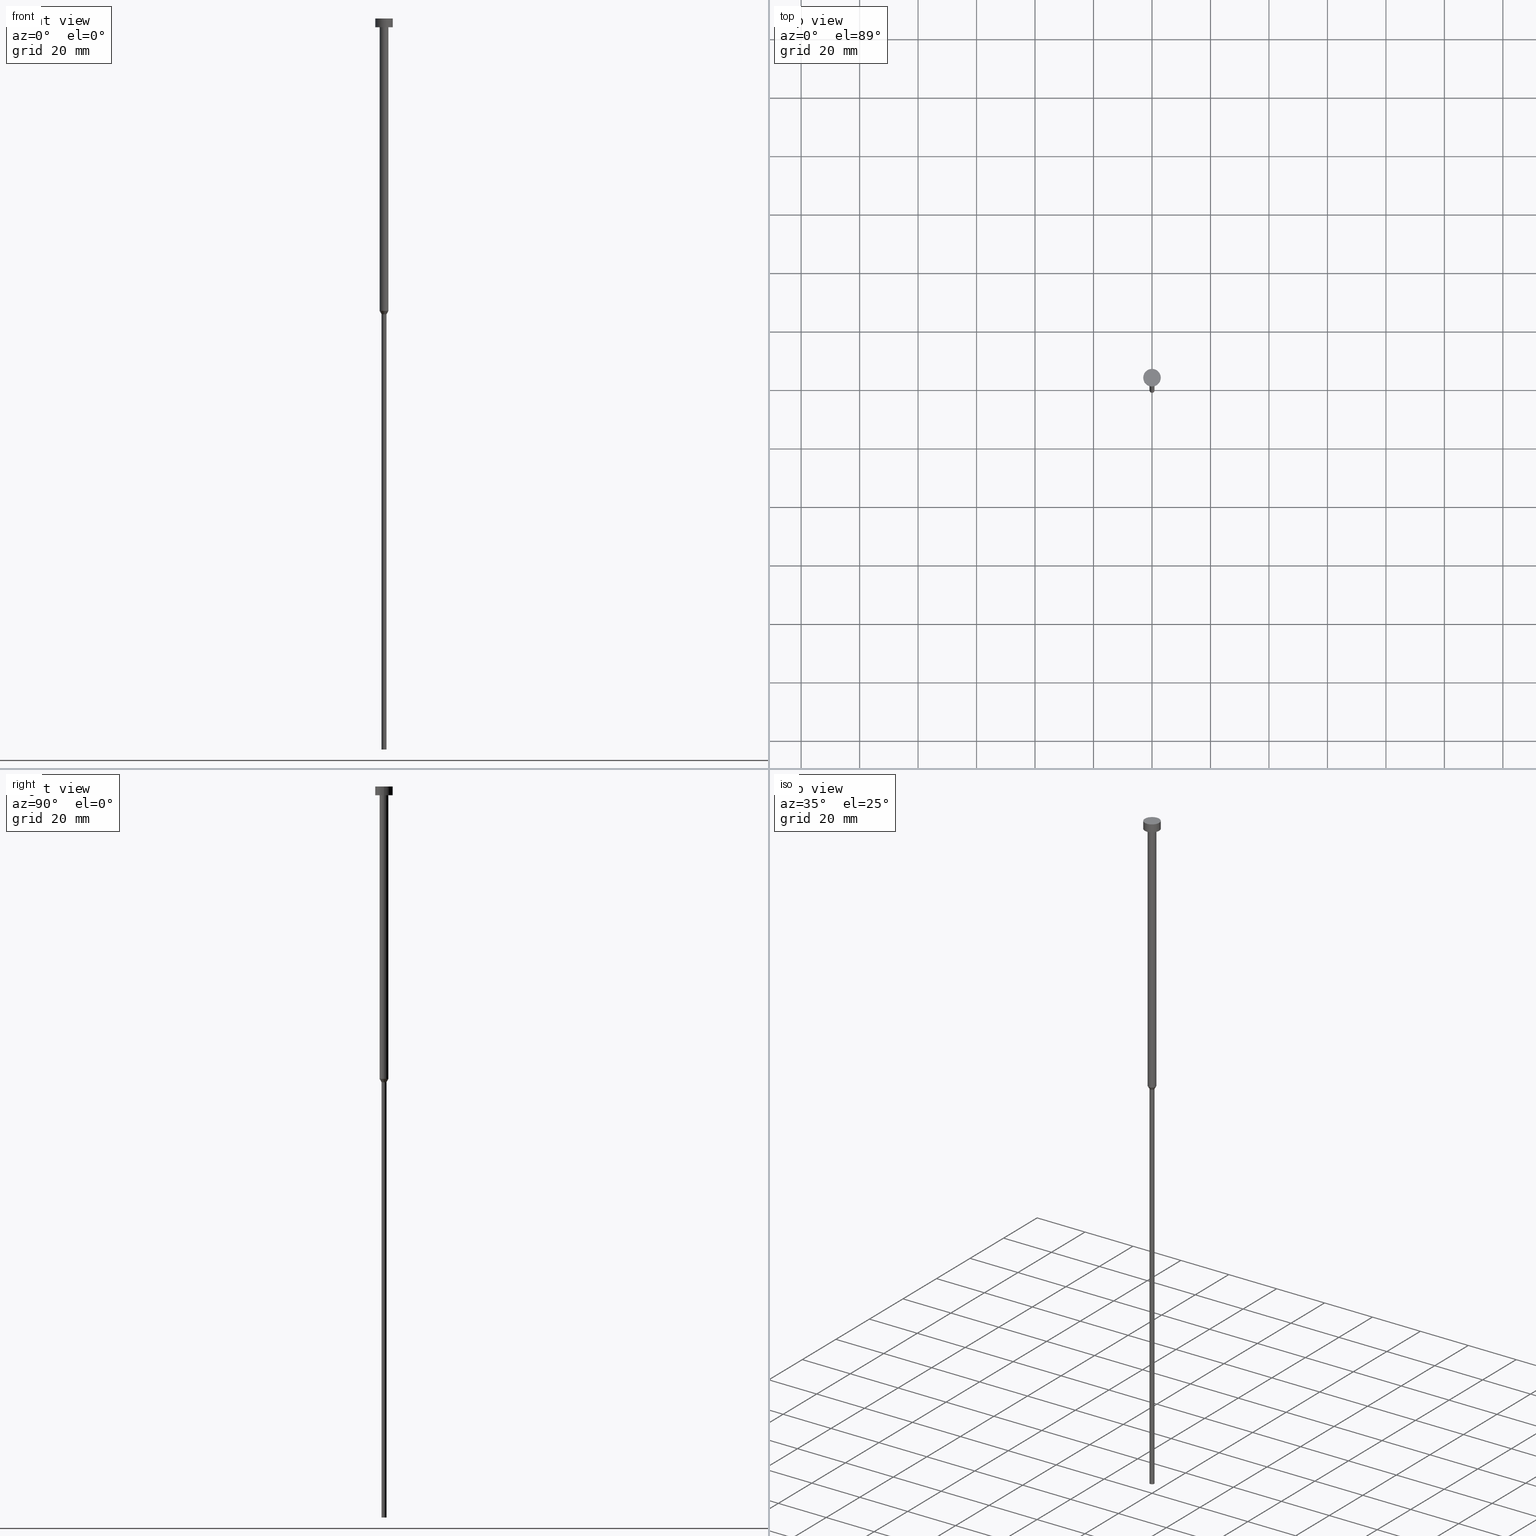
[diagram: canonical four-view strip — front | top / right | iso, engineering-drawing reading convention]
A machine part, canonical four-view strip (front | top / right | iso — engineering-drawing reading convention). The complete STEP part file that produces these views, byte-faithful:
ISO-10303-21;
HEADER;
FILE_DESCRIPTION (( 'STEP AP203' ),
    '1' );
FILE_NAME ('4092.STEP',
    '2023-02-13T09:01:50',
    ( '' ),
    ( '' ),
    'SwSTEP 2.0',
    'SolidWorks 2019',
    '' );
FILE_SCHEMA (( 'CONFIG_CONTROL_DESIGN' ));
ENDSEC;

DATA;
#1 = DIRECTION ( 'NONE',  ( -0.000000000000000000, -0.000000000000000000, 1.000000000000000000 ) ) ;
#2 = LINE ( 'NONE', #190, #108 ) ;
#3 = CYLINDRICAL_SURFACE ( 'NONE', #36, 3.000000000000000000 ) ;
#4 = VECTOR ( 'NONE', #131, 1000.000000000000000 ) ;
#5 = EDGE_CURVE ( 'NONE', #263, #226, #67, .T. ) ;
#6 = CARTESIAN_POINT ( 'NONE',  ( 0.000000000000000000, 0.000000000000000000, 0.000000000000000000 ) ) ;
#7 = PRODUCT_DEFINITION ( 'NEZN�M�', '', #340, #212 ) ;
#8 = VERTEX_POINT ( 'NONE', #103 ) ;
#9 = ORIENTED_EDGE ( 'NONE', *, *, #22, .T. ) ;
#10 = EDGE_LOOP ( 'NONE', ( #62, #336, #198, #308 ) ) ;
#11 = ADVANCED_FACE ( 'NONE', ( #282 ), #148, .T. ) ;
#12 = ORIENTED_EDGE ( 'NONE', *, *, #39, .F. ) ;
#13 = CIRCLE ( 'NONE', #216, 0.8499999999999998668 ) ;
#14 = LOCAL_TIME ( 10, 1, 50.00000000000000000, #159 ) ;
#15 = PERSON_AND_ORGANIZATION_ROLE ( 'design_owner' ) ;
#16 = ORIENTED_EDGE ( 'NONE', *, *, #111, .F. ) ;
#17 = DIRECTION ( 'NONE',  ( -0.000000000000000000, -0.000000000000000000, 1.000000000000000000 ) ) ;
#18 = AXIS2_PLACEMENT_3D ( 'NONE', #105, #321, #162 ) ;
#19 = EDGE_CURVE ( 'NONE', #233, #101, #293, .T. ) ;
#20 = CARTESIAN_POINT ( 'NONE',  ( -1.500000000000000000, 1.836970198721029934E-16, -100.0000000000000000 ) ) ;
#21 = CARTESIAN_POINT ( 'NONE',  ( 0.000000000000000000, 0.000000000000000000, -100.0000000000000000 ) ) ;
#22 = EDGE_CURVE ( 'NONE', #66, #177, #323, .T. ) ;
#23 = APPLICATION_CONTEXT ( 'configuration controlled 3d designs of mechanical parts and assemblies' ) ;
#24 = PRODUCT ( '4092', '4092', '', ( #260 ) ) ;
#25 = PERSON_AND_ORGANIZATION ( #88, #144 ) ;
#26 = DIRECTION ( 'NONE',  ( 0.000000000000000000, 0.000000000000000000, -1.000000000000000000 ) ) ;
#27 = VECTOR ( 'NONE', #267, 1000.000000000000114 ) ;
#28 = SECURITY_CLASSIFICATION_LEVEL ( 'unclassified' ) ;
#29 = CARTESIAN_POINT ( 'NONE',  ( 0.8499999999999998668, 0.000000000000000000, -101.1258330249197570 ) ) ;
#30 = CONICAL_SURFACE ( 'NONE', #316, 1.500000000000000000, 0.5235987755983053660 ) ;
#31 = CALENDAR_DATE ( 2023, 13, 2 ) ;
#32 = DATE_AND_TIME ( #163, #304 ) ;
#33 = DIRECTION ( 'NONE',  ( 0.000000000000000000, -0.000000000000000000, 1.000000000000000000 ) ) ;
#34 = EDGE_CURVE ( 'NONE', #263, #149, #244, .T. ) ;
#35 = COORDINATED_UNIVERSAL_TIME_OFFSET ( 1, 0, .AHEAD. ) ;
#36 = AXIS2_PLACEMENT_3D ( 'NONE', #326, #1, #114 ) ;
#37 = DIRECTION ( 'NONE',  ( 1.000000000000000000, 0.000000000000000000, 0.000000000000000000 ) ) ;
#38 = CARTESIAN_POINT ( 'NONE',  ( 0.000000000000000000, 0.000000000000000000, -101.1258330249197570 ) ) ;
#39 = EDGE_CURVE ( 'NONE', #226, #263, #122, .T. ) ;
#40 = CARTESIAN_POINT ( 'NONE',  ( 0.000000000000000000, 0.000000000000000000, -3.000000000000000888 ) ) ;
#41 = FACE_OUTER_BOUND ( 'NONE', #232, .T. ) ;
#42 = EDGE_LOOP ( 'NONE', ( #171, #259, #256, #195 ) ) ;
#43 = AXIS2_PLACEMENT_3D ( 'NONE', #140, #333, #224 ) ;
#44 = DIRECTION ( 'NONE',  ( 1.000000000000000000, 0.000000000000000000, 0.000000000000000000 ) ) ;
#45 = APPLICATION_PROTOCOL_DEFINITION ( 'international standard', 'config_control_design', 1994, #143 ) ;
#46 = EDGE_CURVE ( 'NONE', #102, #205, #318, .T. ) ;
#47 = DIRECTION ( 'NONE',  ( -0.000000000000000000, -0.000000000000000000, 1.000000000000000000 ) ) ;
#48 = AXIS2_PLACEMENT_3D ( 'NONE', #154, #257, #200 ) ;
#49 = DIRECTION ( 'NONE',  ( 1.000000000000000000, 0.000000000000000000, 0.000000000000000000 ) ) ;
#50 = AXIS2_PLACEMENT_3D ( 'NONE', #137, #168, #247 ) ;
#51 = AXIS2_PLACEMENT_3D ( 'NONE', #6, #228, #307 ) ;
#52 = COORDINATED_UNIVERSAL_TIME_OFFSET ( 1, 0, .AHEAD. ) ;
#53 = CYLINDRICAL_SURFACE ( 'NONE', #339, 1.500000000000000000 ) ;
#54 = APPROVAL_ROLE ( '' ) ;
#55 = PERSON_AND_ORGANIZATION_ROLE ( 'design_supplier' ) ;
#56 = DIRECTION ( 'NONE',  ( -0.000000000000000000, -0.000000000000000000, 1.000000000000000000 ) ) ;
#57 = CIRCLE ( 'NONE', #295, 3.000000000000000000 ) ;
#58 = COORDINATED_UNIVERSAL_TIME_OFFSET ( 1, 0, .AHEAD. ) ;
#59 = CYLINDRICAL_SURFACE ( 'NONE', #73, 1.500000000000000000 ) ;
#60 = CC_DESIGN_APPROVAL ( #281, ( #7 ) ) ;
#61 = CARTESIAN_POINT ( 'NONE',  ( 0.000000000000000000, 0.000000000000000000, -1.836970198721029934E-16 ) ) ;
#62 = ORIENTED_EDGE ( 'NONE', *, *, #22, .F. ) ;
#63 = ADVANCED_FACE ( 'NONE', ( #270 ), #269, .T. ) ;
#64 = APPROVAL_ROLE ( '' ) ;
#65 = DIRECTION ( 'NONE',  ( -0.000000000000000000, -0.000000000000000000, 1.000000000000000000 ) ) ;
#66 = VERTEX_POINT ( 'NONE', #155 ) ;
#67 = CIRCLE ( 'NONE', #330, 3.000000000000000000 ) ;
#68 = DIRECTION ( 'NONE',  ( 1.000000000000000000, 0.000000000000000000, 0.000000000000000000 ) ) ;
#69 = PRODUCT_RELATED_PRODUCT_CATEGORY ( 'detail', '', ( #24 ) ) ;
#70 =( NAMED_UNIT ( * ) PLANE_ANGLE_UNIT ( ) SI_UNIT ( $, .RADIAN. ) );
#71 = ORIENTED_EDGE ( 'NONE', *, *, #302, .F. ) ;
#72 = EDGE_CURVE ( 'NONE', #101, #233, #141, .T. ) ;
#73 = AXIS2_PLACEMENT_3D ( 'NONE', #123, #17, #345 ) ;
#74 = ORIENTED_EDGE ( 'NONE', *, *, #84, .T. ) ;
#75 = EDGE_LOOP ( 'NONE', ( #283, #9, #335, #337 ) ) ;
#76 = ORIENTED_EDGE ( 'NONE', *, *, #5, .F. ) ;
#77 = CARTESIAN_POINT ( 'NONE',  ( -0.8499999999999998668, 1.040949779275250017E-16, 0.000000000000000000 ) ) ;
#78 = ADVANCED_FACE ( 'NONE', ( #265 ), #183, .T. ) ;
#79 = DATE_TIME_ROLE ( 'creation_date' ) ;
#80 = DIRECTION ( 'NONE',  ( -0.000000000000000000, -0.000000000000000000, 1.000000000000000000 ) ) ;
#81 = DIRECTION ( 'NONE',  ( -1.000000000000000000, 0.000000000000000000, -0.000000000000000000 ) ) ;
#82 = CARTESIAN_POINT ( 'NONE',  ( -1.500000000000000000, 1.836970198721029934E-16, -100.0000000000000000 ) ) ;
#83 = CLOSED_SHELL ( 'NONE', ( #258, #199, #138, #11, #78, #63, #127, #211, #348, #255, #341 ) ) ;
#84 = EDGE_CURVE ( 'NONE', #205, #233, #187, .T. ) ;
#85 = PERSON_AND_ORGANIZATION ( #88, #144 ) ;
#86 = DIRECTION ( 'NONE',  ( -0.000000000000000000, -0.000000000000000000, 1.000000000000000000 ) ) ;
#87 = CONICAL_SURFACE ( 'NONE', #279, 1.500000000000000000, 0.5235987755983053660 ) ;
#88 = PERSON ( 'NEUR�EN�', 'NEUR�EN�', 'NEUR�EN�', ('NEUR�EN�'), ('NEUR�EN�'), ('NEUR�EN�') ) ;
#89 = APPROVAL_STATUS ( 'not_yet_approved' ) ;
#90 = CARTESIAN_POINT ( 'NONE',  ( 3.000000000000000000, 0.000000000000000000, -3.000000000000000888 ) ) ;
#91 = ORIENTED_EDGE ( 'NONE', *, *, #19, .T. ) ;
#92 = DIRECTION ( 'NONE',  ( -0.000000000000000000, -0.000000000000000000, 1.000000000000000000 ) ) ;
#93 = AXIS2_PLACEMENT_3D ( 'NONE', #317, #26, #81 ) ;
#94 = EDGE_LOOP ( 'NONE', ( #153, #261, #119, #142 ) ) ;
#95 = CIRCLE ( 'NONE', #285, 1.500000000000000000 ) ;
#96 = LOCAL_TIME ( 10, 1, 50.00000000000000000, #58 ) ;
#97 = CARTESIAN_POINT ( 'NONE',  ( 0.8499999999999998668, 0.000000000000000000, 0.000000000000000000 ) ) ;
#98 = DIRECTION ( 'NONE',  ( 1.000000000000000000, 0.000000000000000000, 0.000000000000000000 ) ) ;
#99 = ORIENTED_EDGE ( 'NONE', *, *, #272, .F. ) ;
#100 = SECURITY_CLASSIFICATION ( '', '', #28 ) ;
#101 = VERTEX_POINT ( 'NONE', #218 ) ;
#102 = VERTEX_POINT ( 'NONE', #29 ) ;
#103 = CARTESIAN_POINT ( 'NONE',  ( -3.000000000000000000, 3.673940397442059868E-16, -3.673940397442059868E-16 ) ) ;
#104 = DIRECTION ( 'NONE',  ( -0.000000000000000000, -0.000000000000000000, 1.000000000000000000 ) ) ;
#105 = CARTESIAN_POINT ( 'NONE',  ( 0.000000000000000000, 0.000000000000000000, -3.000000000000000888 ) ) ;
#106 = CARTESIAN_POINT ( 'NONE',  ( 1.500000000000000000, 0.000000000000000000, -100.0000000000000000 ) ) ;
#107 = PERSON_AND_ORGANIZATION_ROLE ( 'creator' ) ;
#108 = VECTOR ( 'NONE', #274, 1000.000000000000000 ) ;
#109 = DIRECTION ( 'NONE',  ( 1.000000000000000000, 0.000000000000000000, 0.000000000000000000 ) ) ;
#110 = CALENDAR_DATE ( 2023, 13, 2 ) ;
#111 = EDGE_CURVE ( 'NONE', #177, #191, #288, .T. ) ;
#112 = CYLINDRICAL_SURFACE ( 'NONE', #196, 3.000000000000000000 ) ;
#113 = CC_DESIGN_APPROVAL ( #203, ( #340 ) ) ;
#114 = DIRECTION ( 'NONE',  ( 1.000000000000000000, 0.000000000000000000, 0.000000000000000000 ) ) ;
#115 = EDGE_CURVE ( 'NONE', #8, #149, #57, .T. ) ;
#116 = EDGE_LOOP ( 'NONE', ( #229, #231 ) ) ;
#117 = FACE_OUTER_BOUND ( 'NONE', #120, .T. ) ;
#118 = ORIENTED_EDGE ( 'NONE', *, *, #72, .T. ) ;
#119 = ORIENTED_EDGE ( 'NONE', *, *, #19, .F. ) ;
#120 = EDGE_LOOP ( 'NONE', ( #222, #344, #147, #313 ) ) ;
#121 = EDGE_LOOP ( 'NONE', ( #343, #176, #74, #277 ) ) ;
#122 = CIRCLE ( 'NONE', #246, 3.000000000000000000 ) ;
#123 = CARTESIAN_POINT ( 'NONE',  ( 0.000000000000000000, 0.000000000000000000, 0.000000000000000000 ) ) ;
#124 = PERSON_AND_ORGANIZATION ( #88, #144 ) ;
#125 = CIRCLE ( 'NONE', #327, 0.8499999999999998668 ) ;
#126 = CARTESIAN_POINT ( 'NONE',  ( 0.000000000000000000, 0.000000000000000000, -3.000000000000000888 ) ) ;
#127 = ADVANCED_FACE ( 'NONE', ( #290 ), #30, .T. ) ;
#128 = CARTESIAN_POINT ( 'NONE',  ( 3.000000000000000000, 0.000000000000000000, -3.673940397442059868E-16 ) ) ;
#129 = CARTESIAN_POINT ( 'NONE',  ( 0.000000000000000000, 0.000000000000000000, -3.673940397442059868E-16 ) ) ;
#130 = COORDINATED_UNIVERSAL_TIME_OFFSET ( 1, 0, .AHEAD. ) ;
#131 = DIRECTION ( 'NONE',  ( -0.000000000000000000, -0.000000000000000000, 1.000000000000000000 ) ) ;
#132 = AXIS2_PLACEMENT_3D ( 'NONE', #61, #33, #310 ) ;
#133 = CALENDAR_DATE ( 2023, 13, 2 ) ;
#134 = CC_DESIGN_PERSON_AND_ORGANIZATION_ASSIGNMENT ( #311, #15, ( #24 ) ) ;
#135 = CARTESIAN_POINT ( 'NONE',  ( 1.500000000000000000, 0.000000000000000000, -3.000000000000000888 ) ) ;
#136 = DATE_TIME_ROLE ( 'classification_date' ) ;
#137 = CARTESIAN_POINT ( 'NONE',  ( 0.000000000000000000, 0.000000000000000000, -250.0000000000000000 ) ) ;
#138 = ADVANCED_FACE ( 'NONE', ( #292 ), #87, .T. ) ;
#139 = CIRCLE ( 'NONE', #169, 0.8499999999999998668 ) ;
#140 = CARTESIAN_POINT ( 'NONE',  ( 0.000000000000000000, 0.000000000000000000, -100.0000000000000000 ) ) ;
#141 = CIRCLE ( 'NONE', #18, 1.500000000000000000 ) ;
#142 = ORIENTED_EDGE ( 'NONE', *, *, #84, .F. ) ;
#143 = APPLICATION_CONTEXT ( 'configuration controlled 3d designs of mechanical parts and assemblies' ) ;
#144 = ORGANIZATION ( 'NEUR�EN�', 'NEUR�EN�', '' ) ;
#145 = FACE_BOUND ( 'NONE', #286, .T. ) ;
#146 = EDGE_CURVE ( 'NONE', #177, #102, #125, .T. ) ;
#147 = ORIENTED_EDGE ( 'NONE', *, *, #34, .T. ) ;
#148 = CYLINDRICAL_SURFACE ( 'NONE', #48, 0.8499999999999998668 ) ;
#149 = VERTEX_POINT ( 'NONE', #128 ) ;
#150 = CC_DESIGN_DATE_AND_TIME_ASSIGNMENT ( #320, #79, ( #7 ) ) ;
#151 = AXIS2_PLACEMENT_3D ( 'NONE', #193, #301, #68 ) ;
#152 = LOCAL_TIME ( 10, 1, 50.00000000000000000, #35 ) ;
#153 = ORIENTED_EDGE ( 'NONE', *, *, #325, .T. ) ;
#154 = CARTESIAN_POINT ( 'NONE',  ( 0.000000000000000000, 0.000000000000000000, 0.000000000000000000 ) ) ;
#155 = CARTESIAN_POINT ( 'NONE',  ( -0.8499999999999998668, 1.040949779275250017E-16, -250.0000000000000000 ) ) ;
#156 = CARTESIAN_POINT ( 'NONE',  ( 0.000000000000000000, 0.000000000000000000, -101.1258330249197570 ) ) ;
#157 = APPROVAL_PERSON_ORGANIZATION ( #184, #203, #289 ) ;
#158 = CARTESIAN_POINT ( 'NONE',  ( 3.000000000000000000, 0.000000000000000000, 0.000000000000000000 ) ) ;
#159 = COORDINATED_UNIVERSAL_TIME_OFFSET ( 1, 0, .AHEAD. ) ;
#160 = AXIS2_PLACEMENT_3D ( 'NONE', #40, #208, #44 ) ;
#161 = DIRECTION ( 'NONE',  ( 1.000000000000000000, 0.000000000000000000, 0.000000000000000000 ) ) ;
#162 = DIRECTION ( 'NONE',  ( 1.000000000000000000, 0.000000000000000000, 0.000000000000000000 ) ) ;
#163 = CALENDAR_DATE ( 2023, 13, 2 ) ;
#164 = CARTESIAN_POINT ( 'NONE',  ( 0.000000000000000000, 0.000000000000000000, 0.000000000000000000 ) ) ;
#165 = DATE_AND_TIME ( #133, #14 ) ;
#166 = LINE ( 'NONE', #248, #249 ) ;
#167 = APPROVAL_DATE_TIME ( #280, #240 ) ;
#168 = DIRECTION ( 'NONE',  ( -0.000000000000000000, -0.000000000000000000, 1.000000000000000000 ) ) ;
#169 = AXIS2_PLACEMENT_3D ( 'NONE', #38, #170, #329 ) ;
#170 = DIRECTION ( 'NONE',  ( -0.000000000000000000, -0.000000000000000000, 1.000000000000000000 ) ) ;
#171 = ORIENTED_EDGE ( 'NONE', *, *, #262, .T. ) ;
#172 = EDGE_LOOP ( 'NONE', ( #16, #315, #314, #179 ) ) ;
#173 = APPLICATION_PROTOCOL_DEFINITION ( 'international standard', 'config_control_design', 1994, #23 ) ;
#174 = ADVANCED_BREP_SHAPE_REPRESENTATION ( '4092', ( #238, #51 ), #227 ) ;
#175 = ORIENTED_EDGE ( 'NONE', *, *, #250, .T. ) ;
#176 = ORIENTED_EDGE ( 'NONE', *, *, #312, .T. ) ;
#177 = VERTEX_POINT ( 'NONE', #239 ) ;
#178 = VECTOR ( 'NONE', #182, 1000.000000000000000 ) ;
#179 = ORIENTED_EDGE ( 'NONE', *, *, #312, .F. ) ;
#180 = PRODUCT_DEFINITION_SHAPE ( 'NONE', 'NONE',  #7 ) ;
#181 = EDGE_LOOP ( 'NONE', ( #201, #175, #71, #284 ) ) ;
#182 = DIRECTION ( 'NONE',  ( -0.000000000000000000, -0.000000000000000000, 1.000000000000000000 ) ) ;
#183 = PLANE ( 'NONE',  #93 ) ;
#184 = PERSON_AND_ORGANIZATION ( #88, #144 ) ;
#185 = CARTESIAN_POINT ( 'NONE',  ( 0.000000000000000000, 0.000000000000000000, -100.0000000000000000 ) ) ;
#186 = CC_DESIGN_SECURITY_CLASSIFICATION ( #100, ( #340 ) ) ;
#187 = LINE ( 'NONE', #242, #178 ) ;
#188 = CARTESIAN_POINT ( 'NONE',  ( 1.500000000000000000, 0.000000000000000000, -100.0000000000000000 ) ) ;
#189 = PERSON_AND_ORGANIZATION_ROLE ( 'classification_officer' ) ;
#190 = CARTESIAN_POINT ( 'NONE',  ( -1.500000000000000000, 1.836970198721029934E-16, 0.000000000000000000 ) ) ;
#191 = VERTEX_POINT ( 'NONE', #20 ) ;
#192 = CC_DESIGN_PERSON_AND_ORGANIZATION_ASSIGNMENT ( #220, #107, ( #340 ) ) ;
#193 = CARTESIAN_POINT ( 'NONE',  ( 0.000000000000000000, 0.000000000000000000, -3.673940397442059868E-16 ) ) ;
#194 = CARTESIAN_POINT ( 'NONE',  ( 0.000000000000000000, 0.000000000000000000, -100.0000000000000000 ) ) ;
#195 = ORIENTED_EDGE ( 'NONE', *, *, #46, .F. ) ;
#196 = AXIS2_PLACEMENT_3D ( 'NONE', #164, #65, #37 ) ;
#197 = DIRECTION ( 'NONE',  ( 1.000000000000000000, 0.000000000000000000, 0.000000000000000000 ) ) ;
#198 = ORIENTED_EDGE ( 'NONE', *, *, #319, .T. ) ;
#199 = ADVANCED_FACE ( 'NONE', ( #349 ), #53, .T. ) ;
#200 = DIRECTION ( 'NONE',  ( 1.000000000000000000, 0.000000000000000000, 0.000000000000000000 ) ) ;
#201 = ORIENTED_EDGE ( 'NONE', *, *, #5, .T. ) ;
#202 = CIRCLE ( 'NONE', #50, 0.8499999999999998668 ) ;
#203 = APPROVAL ( #89, 'NEUR�EN�' ) ;
#204 =( NAMED_UNIT ( * ) SI_UNIT ( $, .STERADIAN. ) SOLID_ANGLE_UNIT ( ) );
#205 = VERTEX_POINT ( 'NONE', #188 ) ;
#206 = AXIS2_PLACEMENT_3D ( 'NONE', #214, #352, #161 ) ;
#207 = PLANE ( 'NONE',  #266 ) ;
#208 = DIRECTION ( 'NONE',  ( -0.000000000000000000, -0.000000000000000000, 1.000000000000000000 ) ) ;
#209 = LOCAL_TIME ( 10, 1, 50.00000000000000000, #52 ) ;
#210 = DIRECTION ( 'NONE',  ( 1.000000000000000000, 0.000000000000000000, 0.000000000000000000 ) ) ;
#211 = ADVANCED_FACE ( 'NONE', ( #294 ), #59, .T. ) ;
#212 = DESIGN_CONTEXT ( 'detailed design', #143, 'design' ) ;
#213 = DIRECTION ( 'NONE',  ( 1.000000000000000000, 0.000000000000000000, 0.000000000000000000 ) ) ;
#214 = CARTESIAN_POINT ( 'NONE',  ( 0.000000000000000000, 0.000000000000000000, 0.000000000000000000 ) ) ;
#215 = CC_DESIGN_PERSON_AND_ORGANIZATION_ASSIGNMENT ( #25, #217, ( #7 ) ) ;
#216 = AXIS2_PLACEMENT_3D ( 'NONE', #299, #86, #252 ) ;
#217 = PERSON_AND_ORGANIZATION_ROLE ( 'creator' ) ;
#218 = CARTESIAN_POINT ( 'NONE',  ( -1.500000000000000000, 1.836970198721029934E-16, -3.000000000000000888 ) ) ;
#219 = DIRECTION ( 'NONE',  ( -0.000000000000000000, -0.000000000000000000, 1.000000000000000000 ) ) ;
#220 = PERSON_AND_ORGANIZATION ( #88, #144 ) ;
#221 = FACE_OUTER_BOUND ( 'NONE', #181, .T. ) ;
#222 = ORIENTED_EDGE ( 'NONE', *, *, #250, .F. ) ;
#223 = EDGE_CURVE ( 'NONE', #66, #338, #202, .T. ) ;
#224 = DIRECTION ( 'NONE',  ( 1.000000000000000000, 0.000000000000000000, 0.000000000000000000 ) ) ;
#225 = CC_DESIGN_PERSON_AND_ORGANIZATION_ASSIGNMENT ( #328, #189, ( #100 ) ) ;
#226 = VERTEX_POINT ( 'NONE', #275 ) ;
#227 =( GEOMETRIC_REPRESENTATION_CONTEXT ( 3 ) GLOBAL_UNCERTAINTY_ASSIGNED_CONTEXT ( ( #264 ) ) GLOBAL_UNIT_ASSIGNED_CONTEXT ( ( #234, #70, #204 ) ) REPRESENTATION_CONTEXT ( 'NONE', 'WORKASPACE' ) );
#228 = DIRECTION ( 'NONE',  ( 0.000000000000000000, 0.000000000000000000, 1.000000000000000000 ) ) ;
#229 = ORIENTED_EDGE ( 'NONE', *, *, #302, .T. ) ;
#230 = DIRECTION ( 'NONE',  ( -1.000000000000000000, 0.000000000000000000, -0.000000000000000000 ) ) ;
#231 = ORIENTED_EDGE ( 'NONE', *, *, #115, .T. ) ;
#232 = EDGE_LOOP ( 'NONE', ( #76, #12 ) ) ;
#233 = VERTEX_POINT ( 'NONE', #135 ) ;
#234 =( LENGTH_UNIT ( ) NAMED_UNIT ( * ) SI_UNIT ( .MILLI., .METRE. ) );
#235 = CARTESIAN_POINT ( 'NONE',  ( 0.000000000000000000, 0.000000000000000000, -3.000000000000000888 ) ) ;
#236 = DIRECTION ( 'NONE',  ( -0.000000000000000000, -0.000000000000000000, 1.000000000000000000 ) ) ;
#237 = DIRECTION ( 'NONE',  ( -0.000000000000000000, -0.000000000000000000, 1.000000000000000000 ) ) ;
#238 = MANIFOLD_SOLID_BREP ( 'Rotovat1', #83 ) ;
#239 = CARTESIAN_POINT ( 'NONE',  ( -0.8499999999999998668, 1.040949779275250017E-16, -101.1258330249197570 ) ) ;
#240 = APPROVAL ( #298, 'NEUR�EN�' ) ;
#241 = VECTOR ( 'NONE', #347, 1000.000000000000114 ) ;
#242 = CARTESIAN_POINT ( 'NONE',  ( 1.500000000000000000, 0.000000000000000000, 0.000000000000000000 ) ) ;
#243 = VECTOR ( 'NONE', #273, 1000.000000000000000 ) ;
#244 = LINE ( 'NONE', #158, #4 ) ;
#245 = PERSON_AND_ORGANIZATION ( #88, #144 ) ;
#246 = AXIS2_PLACEMENT_3D ( 'NONE', #126, #237, #213 ) ;
#247 = DIRECTION ( 'NONE',  ( 1.000000000000000000, 0.000000000000000000, 0.000000000000000000 ) ) ;
#248 = CARTESIAN_POINT ( 'NONE',  ( -3.000000000000000000, 3.673940397442059868E-16, 0.000000000000000000 ) ) ;
#249 = VECTOR ( 'NONE', #92, 1000.000000000000000 ) ;
#250 = EDGE_CURVE ( 'NONE', #226, #8, #166, .T. ) ;
#251 = CC_DESIGN_DATE_AND_TIME_ASSIGNMENT ( #32, #136, ( #100 ) ) ;
#252 = DIRECTION ( 'NONE',  ( 1.000000000000000000, 0.000000000000000000, 0.000000000000000000 ) ) ;
#253 = CALENDAR_DATE ( 2023, 13, 2 ) ;
#254 = CARTESIAN_POINT ( 'NONE',  ( 0.000000000000000000, -3.000000000000000000, -3.000000000000000888 ) ) ;
#255 = ADVANCED_FACE ( 'NONE', ( #117 ), #112, .T. ) ;
#256 = ORIENTED_EDGE ( 'NONE', *, *, #325, .F. ) ;
#257 = DIRECTION ( 'NONE',  ( -0.000000000000000000, -0.000000000000000000, 1.000000000000000000 ) ) ;
#258 = ADVANCED_FACE ( 'NONE', ( #221 ), #3, .T. ) ;
#259 = ORIENTED_EDGE ( 'NONE', *, *, #111, .T. ) ;
#260 = MECHANICAL_CONTEXT ( 'NONE', #23, 'mechanical' ) ;
#261 = ORIENTED_EDGE ( 'NONE', *, *, #297, .T. ) ;
#262 = EDGE_CURVE ( 'NONE', #102, #177, #139, .T. ) ;
#263 = VERTEX_POINT ( 'NONE', #90 ) ;
#264 = UNCERTAINTY_MEASURE_WITH_UNIT (LENGTH_MEASURE( 1.000000000000000082E-05 ), #234, 'distance_accuracy_value', 'NONE');
#265 = FACE_OUTER_BOUND ( 'NONE', #300, .T. ) ;
#266 = AXIS2_PLACEMENT_3D ( 'NONE', #254, #342, #230 ) ;
#267 = DIRECTION ( 'NONE',  ( -0.5000000000000056621, 6.123233995736835061E-17, 0.8660254037844352659 ) ) ;
#268 = APPROVAL_STATUS ( 'not_yet_approved' ) ;
#269 = CYLINDRICAL_SURFACE ( 'NONE', #206, 0.8499999999999998668 ) ;
#270 = FACE_OUTER_BOUND ( 'NONE', #10, .T. ) ;
#271 = FACE_OUTER_BOUND ( 'NONE', #116, .T. ) ;
#272 = EDGE_CURVE ( 'NONE', #338, #66, #13, .T. ) ;
#273 = DIRECTION ( 'NONE',  ( -0.000000000000000000, -0.000000000000000000, 1.000000000000000000 ) ) ;
#274 = DIRECTION ( 'NONE',  ( -0.000000000000000000, -0.000000000000000000, 1.000000000000000000 ) ) ;
#275 = CARTESIAN_POINT ( 'NONE',  ( -3.000000000000000000, 3.673940397442059868E-16, -3.000000000000000888 ) ) ;
#276 = DIRECTION ( 'NONE',  ( -0.000000000000000000, -0.000000000000000000, 1.000000000000000000 ) ) ;
#277 = ORIENTED_EDGE ( 'NONE', *, *, #72, .F. ) ;
#278 = DIRECTION ( 'NONE',  ( -0.000000000000000000, -0.000000000000000000, 1.000000000000000000 ) ) ;
#279 = AXIS2_PLACEMENT_3D ( 'NONE', #21, #56, #355 ) ;
#280 = DATE_AND_TIME ( #253, #152 ) ;
#281 = APPROVAL ( #268, 'NEUR�EN�' ) ;
#282 = FACE_OUTER_BOUND ( 'NONE', #75, .T. ) ;
#283 = ORIENTED_EDGE ( 'NONE', *, *, #272, .T. ) ;
#284 = ORIENTED_EDGE ( 'NONE', *, *, #34, .F. ) ;
#285 = AXIS2_PLACEMENT_3D ( 'NONE', #194, #276, #197 ) ;
#286 = EDGE_LOOP ( 'NONE', ( #91, #118 ) ) ;
#287 = CARTESIAN_POINT ( 'NONE',  ( 0.000000000000000000, 0.000000000000000000, 0.000000000000000000 ) ) ;
#288 = LINE ( 'NONE', #82, #27 ) ;
#289 = APPROVAL_ROLE ( '' ) ;
#290 = FACE_OUTER_BOUND ( 'NONE', #172, .T. ) ;
#291 = APPROVAL_DATE_TIME ( #165, #281 ) ;
#292 = FACE_OUTER_BOUND ( 'NONE', #42, .T. ) ;
#293 = CIRCLE ( 'NONE', #160, 1.500000000000000000 ) ;
#294 = FACE_OUTER_BOUND ( 'NONE', #121, .T. ) ;
#295 = AXIS2_PLACEMENT_3D ( 'NONE', #129, #80, #210 ) ;
#296 = PLANE ( 'NONE',  #132 ) ;
#297 = EDGE_CURVE ( 'NONE', #191, #101, #2, .T. ) ;
#298 = APPROVAL_STATUS ( 'not_yet_approved' ) ;
#299 = CARTESIAN_POINT ( 'NONE',  ( 0.000000000000000000, 0.000000000000000000, -250.0000000000000000 ) ) ;
#300 = EDGE_LOOP ( 'NONE', ( #99, #306 ) ) ;
#301 = DIRECTION ( 'NONE',  ( -0.000000000000000000, -0.000000000000000000, 1.000000000000000000 ) ) ;
#302 = EDGE_CURVE ( 'NONE', #149, #8, #303, .T. ) ;
#303 = CIRCLE ( 'NONE', #151, 3.000000000000000000 ) ;
#304 = LOCAL_TIME ( 10, 1, 50.00000000000000000, #130 ) ;
#305 = CARTESIAN_POINT ( 'NONE',  ( 0.8499999999999998668, 0.000000000000000000, -250.0000000000000000 ) ) ;
#306 = ORIENTED_EDGE ( 'NONE', *, *, #223, .F. ) ;
#307 = DIRECTION ( 'NONE',  ( 1.000000000000000000, 0.000000000000000000, 0.000000000000000000 ) ) ;
#308 = ORIENTED_EDGE ( 'NONE', *, *, #146, .F. ) ;
#309 = CC_DESIGN_PERSON_AND_ORGANIZATION_ASSIGNMENT ( #85, #55, ( #340 ) ) ;
#310 = DIRECTION ( 'NONE',  ( 1.000000000000000000, 0.000000000000000000, 0.000000000000000000 ) ) ;
#311 = PERSON_AND_ORGANIZATION ( #88, #144 ) ;
#312 = EDGE_CURVE ( 'NONE', #191, #205, #353, .T. ) ;
#313 = ORIENTED_EDGE ( 'NONE', *, *, #115, .F. ) ;
#314 = ORIENTED_EDGE ( 'NONE', *, *, #46, .T. ) ;
#315 = ORIENTED_EDGE ( 'NONE', *, *, #146, .T. ) ;
#316 = AXIS2_PLACEMENT_3D ( 'NONE', #185, #47, #49 ) ;
#317 = CARTESIAN_POINT ( 'NONE',  ( 0.000000000000000000, 0.000000000000000000, -250.0000000000000000 ) ) ;
#318 = LINE ( 'NONE', #106, #241 ) ;
#319 = EDGE_CURVE ( 'NONE', #338, #102, #331, .T. ) ;
#320 = DATE_AND_TIME ( #31, #96 ) ;
#321 = DIRECTION ( 'NONE',  ( -0.000000000000000000, -0.000000000000000000, 1.000000000000000000 ) ) ;
#322 = DATE_AND_TIME ( #110, #209 ) ;
#323 = LINE ( 'NONE', #77, #350 ) ;
#324 = DIRECTION ( 'NONE',  ( 1.000000000000000000, 0.000000000000000000, 0.000000000000000000 ) ) ;
#325 = EDGE_CURVE ( 'NONE', #205, #191, #95, .T. ) ;
#326 = CARTESIAN_POINT ( 'NONE',  ( 0.000000000000000000, 0.000000000000000000, 0.000000000000000000 ) ) ;
#327 = AXIS2_PLACEMENT_3D ( 'NONE', #156, #104, #109 ) ;
#328 = PERSON_AND_ORGANIZATION ( #88, #144 ) ;
#329 = DIRECTION ( 'NONE',  ( 1.000000000000000000, 0.000000000000000000, 0.000000000000000000 ) ) ;
#330 = AXIS2_PLACEMENT_3D ( 'NONE', #235, #278, #98 ) ;
#331 = LINE ( 'NONE', #97, #243 ) ;
#332 = SHAPE_DEFINITION_REPRESENTATION ( #180, #174 ) ;
#333 = DIRECTION ( 'NONE',  ( -0.000000000000000000, -0.000000000000000000, 1.000000000000000000 ) ) ;
#334 = APPROVAL_PERSON_ORGANIZATION ( #124, #281, #54 ) ;
#335 = ORIENTED_EDGE ( 'NONE', *, *, #262, .F. ) ;
#336 = ORIENTED_EDGE ( 'NONE', *, *, #223, .T. ) ;
#337 = ORIENTED_EDGE ( 'NONE', *, *, #319, .F. ) ;
#338 = VERTEX_POINT ( 'NONE', #305 ) ;
#339 = AXIS2_PLACEMENT_3D ( 'NONE', #287, #219, #324 ) ;
#340 = PRODUCT_DEFINITION_FORMATION_WITH_SPECIFIED_SOURCE ( 'LIBOVOLN�', '', #24, .NOT_KNOWN. ) ;
#341 = ADVANCED_FACE ( 'NONE', ( #271 ), #296, .T. ) ;
#342 = DIRECTION ( 'NONE',  ( 0.000000000000000000, 0.000000000000000000, -1.000000000000000000 ) ) ;
#343 = ORIENTED_EDGE ( 'NONE', *, *, #297, .F. ) ;
#344 = ORIENTED_EDGE ( 'NONE', *, *, #39, .T. ) ;
#345 = DIRECTION ( 'NONE',  ( 1.000000000000000000, 0.000000000000000000, 0.000000000000000000 ) ) ;
#346 = APPROVAL_PERSON_ORGANIZATION ( #245, #240, #64 ) ;
#347 = DIRECTION ( 'NONE',  ( 0.5000000000000056621, 0.000000000000000000, 0.8660254037844352659 ) ) ;
#348 = ADVANCED_FACE ( 'NONE', ( #145, #41 ), #207, .T. ) ;
#349 = FACE_OUTER_BOUND ( 'NONE', #94, .T. ) ;
#350 = VECTOR ( 'NONE', #236, 1000.000000000000000 ) ;
#351 = APPROVAL_DATE_TIME ( #322, #203 ) ;
#352 = DIRECTION ( 'NONE',  ( -0.000000000000000000, -0.000000000000000000, 1.000000000000000000 ) ) ;
#353 = CIRCLE ( 'NONE', #43, 1.500000000000000000 ) ;
#354 = CC_DESIGN_APPROVAL ( #240, ( #100 ) ) ;
#355 = DIRECTION ( 'NONE',  ( 1.000000000000000000, 0.000000000000000000, 0.000000000000000000 ) ) ;
ENDSEC;
END-ISO-10303-21;
